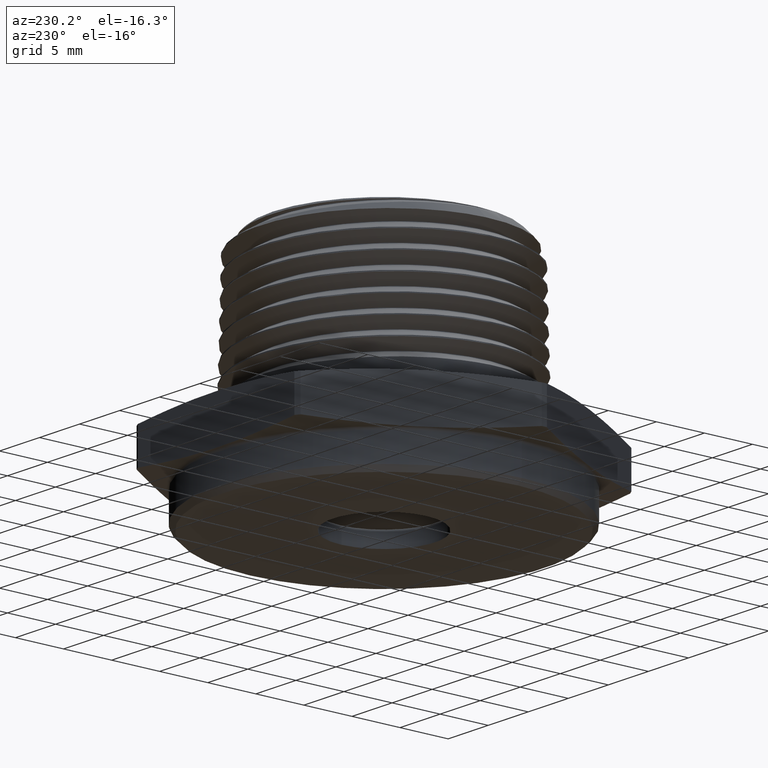
[diagram: clean part render]
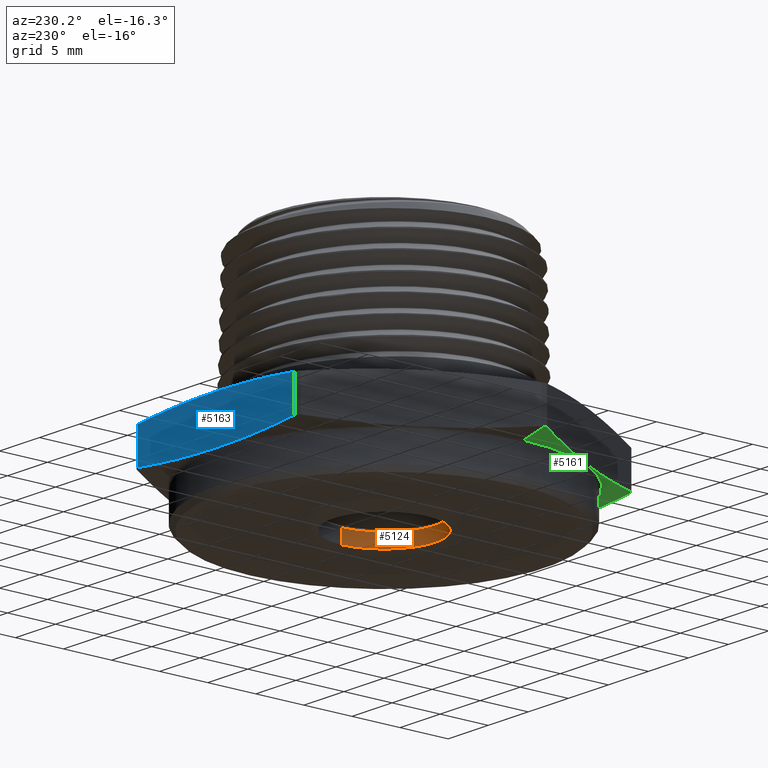
[diagram: same view with three faces highlighted in distinct colors, each labeled with its STEP entity id]
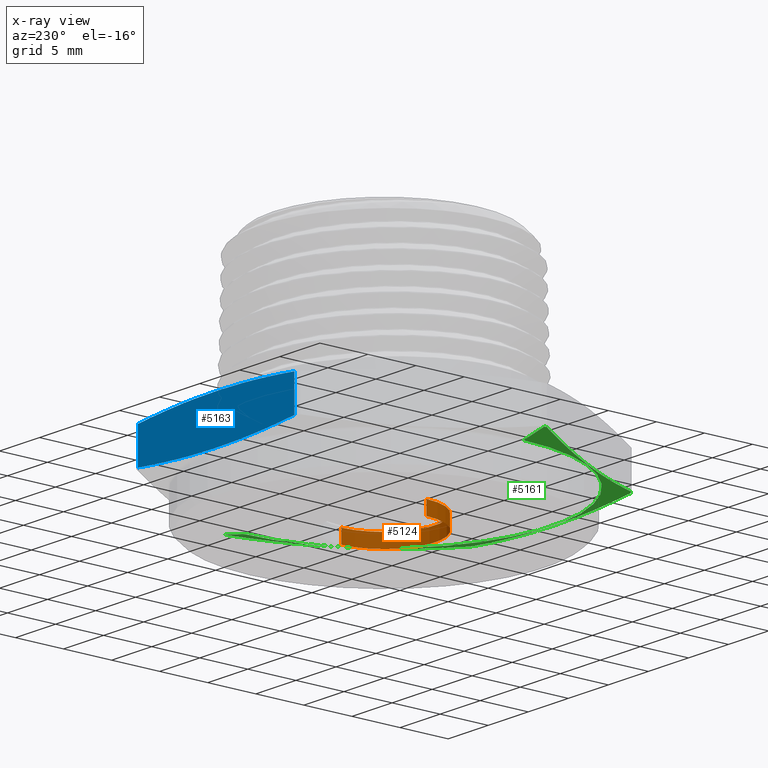
[diagram: x-ray of the same camera — body ghosted, the three highlighted faces saturated]
A machine part, auxiliary view with three faces highlighted in distinct colors.
The next image is the same camera in x-ray (body ghosted, the three faces saturated) — at least one of them is partly hidden behind the body in this view.
Their STEP definitions:

[orange] entity #5124 — the highlighted cylindrical surface (partial cylindrical patch) has radius 5.3086 mm, axis along (0, 0, 1).
#19 = EDGE_CURVE ( 'NONE', #4787, #4785, #908, .T. ) ;
#20 = EDGE_CURVE ( 'NONE', #4788, #4787, #910, .T. ) ;
#22 = EDGE_CURVE ( 'NONE', #4784, #4785, #914, .T. ) ;
#23 = EDGE_CURVE ( 'NONE', #4788, #4784, #915, .T. ) ;
#908 = LINE ( 'NONE', #4375, #913 ) ;
#910 = CIRCLE ( 'NONE', #5188, 0.2090000000000001000 ) ;
#913 = VECTOR ( 'NONE', #4406, 39.37007874015748100 ) ;
#914 = CIRCLE ( 'NONE', #5189, 0.2090000000000000700 ) ;
#915 = LINE ( 'NONE', #4394, #919 ) ;
#919 = VECTOR ( 'NONE', #4398, 39.37007874015748100 ) ;
#1148 = CARTESIAN_POINT ( 'NONE',  ( -0.2090000000000000700, 2.559511810217969300E-017, -0.08400000000000001900 ) ) ;
#1149 = CARTESIAN_POINT ( 'NONE',  ( 0.2090000000000000700, 0.0000000000000000000, -0.08400000000000001900 ) ) ;
#1151 = CARTESIAN_POINT ( 'NONE',  ( 0.2090000000000001000, 0.0000000000000000000, -0.1400000000000000100 ) ) ;
#1152 = CARTESIAN_POINT ( 'NONE',  ( -0.2090000000000001000, 2.559511810217969600E-017, -0.1400000000000000100 ) ) ;
#2866 = DIRECTION ( 'NONE',  ( 1.000000000000000000, 0.0000000000000000000, 0.0000000000000000000 ) ) ;
#2868 = CARTESIAN_POINT ( 'NONE',  ( 4.898587196589410500E-018, 0.0000000000000000000, -0.1400000000000000100 ) ) ;
#2873 = DIRECTION ( 'NONE',  ( -0.0000000000000000000, -0.0000000000000000000, 1.000000000000000000 ) ) ;
#4375 = CARTESIAN_POINT ( 'NONE',  ( 0.2090000000000000700, 0.0000000000000000000, -0.1400000000000000100 ) ) ;
#4391 = DIRECTION ( 'NONE',  ( 1.000000000000000000, 0.0000000000000000000, 0.0000000000000000000 ) ) ;
#4392 = DIRECTION ( 'NONE',  ( -0.0000000000000000000, -0.0000000000000000000, 1.000000000000000000 ) ) ;
#4393 = CARTESIAN_POINT ( 'NONE',  ( 4.898587196589410500E-018, 0.0000000000000000000, -0.08400000000000001900 ) ) ;
#4394 = CARTESIAN_POINT ( 'NONE',  ( -0.2090000000000000700, 2.559511810217969300E-017, -0.1400000000000000100 ) ) ;
#4396 = DIRECTION ( 'NONE',  ( 1.000000000000000000, 0.0000000000000000000, 0.0000000000000000000 ) ) ;
#4398 = DIRECTION ( 'NONE',  ( -0.0000000000000000000, -0.0000000000000000000, 1.000000000000000000 ) ) ;
#4406 = DIRECTION ( 'NONE',  ( -0.0000000000000000000, -0.0000000000000000000, 1.000000000000000000 ) ) ;
#4408 = CARTESIAN_POINT ( 'NONE',  ( 4.898587196589410500E-018, 0.0000000000000000000, -0.1400000000000000100 ) ) ;
#4435 = DIRECTION ( 'NONE',  ( -0.0000000000000000000, -0.0000000000000000000, 1.000000000000000000 ) ) ;
#4635 = AXIS2_PLACEMENT_3D ( 'NONE', #2868, #2873, #2866 ) ;
#4640 = FACE_OUTER_BOUND ( 'NONE', #4989, .T. ) ;
#4652 = CYLINDRICAL_SURFACE ( 'NONE', #4635, 0.2090000000000000700 ) ;
#4784 = VERTEX_POINT ( 'NONE', #1148 ) ;
#4785 = VERTEX_POINT ( 'NONE', #1149 ) ;
#4787 = VERTEX_POINT ( 'NONE', #1151 ) ;
#4788 = VERTEX_POINT ( 'NONE', #1152 ) ;
#4989 = EDGE_LOOP ( 'NONE', ( #5033, #5034, #5035, #5036 ) ) ;
#5033 = ORIENTED_EDGE ( 'NONE', *, *, #20, .F. ) ;
#5034 = ORIENTED_EDGE ( 'NONE', *, *, #23, .T. ) ;
#5035 = ORIENTED_EDGE ( 'NONE', *, *, #22, .T. ) ;
#5036 = ORIENTED_EDGE ( 'NONE', *, *, #19, .F. ) ;
#5124 = ADVANCED_FACE ( 'NONE', ( #4640 ), #4652, .F. ) ;
#5188 = AXIS2_PLACEMENT_3D ( 'NONE', #4408, #4435, #4396 ) ;
#5189 = AXIS2_PLACEMENT_3D ( 'NONE', #4393, #4392, #4391 ) ;

[blue] entity #5163 — the highlighted planar face has unit normal (0, -1, 0).
#115 = CARTESIAN_POINT ( 'NONE',  ( -0.3206987693183110400, 0.6874999999999998900, 0.1731962270674348200 ) ) ;
#119 = CARTESIAN_POINT ( 'NONE',  ( -0.3847879986326299100, 0.6874999999999998900, 0.1665429762664240300 ) ) ;
#120 = CARTESIAN_POINT ( 'NONE',  ( -0.2563731344308742800, 0.6874999999999996700, 0.1785996772782396100 ) ) ;
#121 = CARTESIAN_POINT ( 'NONE',  ( -0.1279218478780771400, 0.6875000000000000000, 0.1859489239311414600 ) ) ;
#122 = CARTESIAN_POINT ( 'NONE',  ( -0.06373527960806489600, 0.6875000000000000000, 0.1878824941306009900 ) ) ;
#123 = CARTESIAN_POINT ( 'NONE',  ( 0.06455070254764767900, 0.6874999999999998900, 0.1878663232425650500 ) ) ;
#124 = CARTESIAN_POINT ( 'NONE',  ( 0.1286501297542921900, 0.6874999999999998900, 0.1859171756923208900 ) ) ;
#125 = CARTESIAN_POINT ( 'NONE',  ( 0.2567715097588388900, 0.6875000000000000000, 0.1785668770203054400 ) ) ;
#126 = CARTESIAN_POINT ( 'NONE',  ( 0.3207939254006875700, 0.6875000000000000000, 0.1731863486949208600 ) ) ;
#127 = CARTESIAN_POINT ( 'NONE',  ( 0.3847879986326299100, 0.6874999999999998900, 0.1665429762664239500 ) ) ;
#239 = CARTESIAN_POINT ( 'NONE',  ( 0.3847879986326299100, 0.6874999999999998900, -4.829037620974710700E-017 ) ) ;
#240 = DIRECTION ( 'NONE',  ( -1.254986547952384500E-016, -0.0000000000000000000, -1.000000000000000000 ) ) ;
#253 = CARTESIAN_POINT ( 'NONE',  ( -0.3847879986326299100, 0.6874999999999998900, 4.829037620974710700E-017 ) ) ;
#254 = DIRECTION ( 'NONE',  ( 1.254986547952384500E-016, 0.0000000000000000000, 1.000000000000000000 ) ) ;
#761 = LINE ( 'NONE', #239, #763 ) ;
#763 = VECTOR ( 'NONE', #240, 39.37007874015748100 ) ;
#766 = LINE ( 'NONE', #253, #769 ) ;
#769 = VECTOR ( 'NONE', #254, 39.37007874015748100 ) ;
#1142 = CARTESIAN_POINT ( 'NONE',  ( 0.3847879986326299100, 0.6874999999999998900, 0.02345702373357588100 ) ) ;
#1172 = CARTESIAN_POINT ( 'NONE',  ( -0.3847879986326299100, 0.6874999999999998900, 0.02345702373357583200 ) ) ;
#1175 = CARTESIAN_POINT ( 'NONE',  ( -0.3847879986326299100, 0.6874999999999998900, 0.1665429762664240300 ) ) ;
#1177 = CARTESIAN_POINT ( 'NONE',  ( 0.3847879986326299100, 0.6874999999999998900, 0.1665429762664239500 ) ) ;
#3008 = AXIS2_PLACEMENT_3D ( 'NONE', #3044, #3049, #3050 ) ;
#3042 = PLANE ( 'NONE',  #3008 ) ;
#3044 = CARTESIAN_POINT ( 'NONE',  ( 0.3969283100678672700, 0.6874999999999998900, 0.1899999999999999700 ) ) ;
#3049 = DIRECTION ( 'NONE',  ( 0.0000000000000000000, -1.000000000000000000, 0.0000000000000000000 ) ) ;
#3050 = DIRECTION ( 'NONE',  ( 0.0000000000000000000, -0.0000000000000000000, -1.000000000000000000 ) ) ;
#3392 = B_SPLINE_CURVE_WITH_KNOTS ( 'NONE', 3,
 ( #4557, #4552, #4553, #4558, #4559, #4560, #4561, #4562, #4563, #4564 ),
 .UNSPECIFIED., .F., .F.,
 ( 4, 2, 2, 2, 4 ),
 ( 0.03842031353114799800, 0.04332173302324189600, 0.04822315251533578600, 0.05312457200742968400, 0.05802599149952358100 ),
 .UNSPECIFIED. ) ;
#3913 = B_SPLINE_CURVE_WITH_KNOTS ( 'NONE', 3,
 ( #119, #115, #120, #121, #122, #123, #124, #125, #126, #127 ),
 .UNSPECIFIED., .F., .F.,
 ( 4, 2, 2, 2, 4 ),
 ( 0.01704165970951810500, 0.02194787881100385500, 0.02685409791248960500, 0.03176031701397535900, 0.03666653611546111200 ),
 .UNSPECIFIED. ) ;
#4287 = EDGE_CURVE ( 'NONE', #4775, #4808, #3392, .T. ) ;
#4297 = EDGE_CURVE ( 'NONE', #4811, #4813, #3913, .T. ) ;
#4325 = EDGE_CURVE ( 'NONE', #4813, #4775, #761, .T. ) ;
#4328 = EDGE_CURVE ( 'NONE', #4808, #4811, #766, .T. ) ;
#4552 = CARTESIAN_POINT ( 'NONE',  ( 0.3207939254006876900, 0.6875000000000000000, 0.01681365130507889200 ) ) ;
#4553 = CARTESIAN_POINT ( 'NONE',  ( 0.2567715097588390000, 0.6874999999999998900, 0.01143312297969431400 ) ) ;
#4557 = CARTESIAN_POINT ( 'NONE',  ( 0.3847879986326299100, 0.6874999999999998900, 0.02345702373357588100 ) ) ;
#4558 = CARTESIAN_POINT ( 'NONE',  ( 0.1286501297542923300, 0.6875000000000000000, 0.004082824307678927100 ) ) ;
#4559 = CARTESIAN_POINT ( 'NONE',  ( 0.06455070254764767900, 0.6875000000000000000, 0.002133676757434792600 ) ) ;
#4560 = CARTESIAN_POINT ( 'NONE',  ( -0.06373527960806492400, 0.6875000000000000000, 0.002117505869398945600 ) ) ;
#4561 = CARTESIAN_POINT ( 'NONE',  ( -0.1279218478780772800, 0.6875000000000000000, 0.004051076068858394500 ) ) ;
#4562 = CARTESIAN_POINT ( 'NONE',  ( -0.2563731344308744500, 0.6874999999999998900, 0.01140032272176029800 ) ) ;
#4563 = CARTESIAN_POINT ( 'NONE',  ( -0.3206987693183109300, 0.6874999999999998900, 0.01680377293256510300 ) ) ;
#4564 = CARTESIAN_POINT ( 'NONE',  ( -0.3847879986326299100, 0.6874999999999998900, 0.02345702373357583200 ) ) ;
#4710 = FACE_OUTER_BOUND ( 'NONE', #5083, .T. ) ;
#4775 = VERTEX_POINT ( 'NONE', #1142 ) ;
#4808 = VERTEX_POINT ( 'NONE', #1172 ) ;
#4811 = VERTEX_POINT ( 'NONE', #1175 ) ;
#4813 = VERTEX_POINT ( 'NONE', #1177 ) ;
#5083 = EDGE_LOOP ( 'NONE', ( #5657, #5658, #5659, #5660 ) ) ;
#5163 = ADVANCED_FACE ( 'NONE', ( #4710 ), #3042, .F. ) ;
#5657 = ORIENTED_EDGE ( 'NONE', *, *, #4287, .T. ) ;
#5658 = ORIENTED_EDGE ( 'NONE', *, *, #4328, .T. ) ;
#5659 = ORIENTED_EDGE ( 'NONE', *, *, #4297, .T. ) ;
#5660 = ORIENTED_EDGE ( 'NONE', *, *, #4325, .T. ) ;

[green] entity #5161 — the highlighted conical surface has half-angle 78 deg.
#215 = CARTESIAN_POINT ( 'NONE',  ( 2.943824924063742600E-018, 0.0000000000000000000, 0.02345702373357578400 ) ) ;
#216 = DIRECTION ( 'NONE',  ( -1.254986547952384500E-016, -0.0000000000000000000, -1.000000000000000000 ) ) ;
#217 = DIRECTION ( 'NONE',  ( -1.000000000000000000, 0.0000000000000000000, 1.246112360589104400E-016 ) ) ;
#227 = CARTESIAN_POINT ( 'NONE',  ( 2.943824924063742600E-018, 0.0000000000000000000, 0.02345702373357578400 ) ) ;
#228 = DIRECTION ( 'NONE',  ( -1.254986547952384500E-016, -0.0000000000000000000, -1.000000000000000000 ) ) ;
#229 = DIRECTION ( 'NONE',  ( -1.000000000000000000, 0.0000000000000000000, 1.246112360589104400E-016 ) ) ;
#246 = CARTESIAN_POINT ( 'NONE',  ( 2.943824924063742600E-018, 0.0000000000000000000, 0.02345702373357578400 ) ) ;
#247 = DIRECTION ( 'NONE',  ( -1.254986547952384500E-016, -0.0000000000000000000, -1.000000000000000000 ) ) ;
#248 = DIRECTION ( 'NONE',  ( -1.000000000000000000, 0.0000000000000000000, 1.246112360589104400E-016 ) ) ;
#274 = CARTESIAN_POINT ( 'NONE',  ( 0.4350641323382057300, -0.6214468182393573200, 0.01679940204084127300 ) ) ;
#276 = CARTESIAN_POINT ( 'NONE',  ( 0.4671297988909249300, -0.5659074545914861700, 0.01141340463327810200 ) ) ;
#283 = CARTESIAN_POINT ( 'NONE',  ( -0.3206987692007930400, -0.6875000000000001100, 0.01680377292036532700 ) ) ;
#284 = CARTESIAN_POINT ( 'NONE',  ( 0.4029984657854863700, -0.6769861818872291400, 0.02345702373357588100 ) ) ;
#285 = CARTESIAN_POINT ( 'NONE',  ( -0.2563731341799860800, -0.6875000000000001100, 0.01140032270151696000 ) ) ;
#286 = CARTESIAN_POINT ( 'NONE',  ( 0.5312611319963631600, -0.4548287272957428600, 0.004066218508011505200 ) ) ;
#287 = CARTESIAN_POINT ( 'NONE',  ( 0.5953924651018014400, -0.3437499999999998300, 0.0001849127253884613400 ) ) ;
#288 = CARTESIAN_POINT ( 'NONE',  ( 0.6595237982072397200, -0.2326712727042565300, 0.004066218508011475700 ) ) ;
#289 = CARTESIAN_POINT ( 'NONE',  ( 0.7236551313126782200, -0.1215925454085133600, 0.01141340463327806200 ) ) ;
#290 = CARTESIAN_POINT ( 'NONE',  ( 0.7557207978653973600, -0.06605318176064181600, 0.01679940204084123100 ) ) ;
#291 = CARTESIAN_POINT ( 'NONE',  ( 0.7877864644181163900, -0.01051381811277011200, 0.02345702373357568700 ) ) ;
#293 = CARTESIAN_POINT ( 'NONE',  ( -0.3847879986326295200, -0.6875000000000000000, 0.02345702373357588100 ) ) ;
#294 = CARTESIAN_POINT ( 'NONE',  ( -0.1279218474649858100, -0.6875000000000001100, 0.004051076051112646000 ) ) ;
#295 = CARTESIAN_POINT ( 'NONE',  ( -0.06373527915191754000, -0.6875000000000000000, 0.002117505860394467900 ) ) ;
#296 = CARTESIAN_POINT ( 'NONE',  ( 0.06455070300540931300, -0.6874999999999998900, 0.002133676766554501400 ) ) ;
#297 = CARTESIAN_POINT ( 'NONE',  ( 0.1286501301706384800, -0.6874999999999998900, 0.004082824325596340300 ) ) ;
#298 = CARTESIAN_POINT ( 'NONE',  ( 0.2567715100175841400, -0.6874999999999998900, 0.01143312300050682400 ) ) ;
#299 = CARTESIAN_POINT ( 'NONE',  ( 0.3207939255436973400, -0.6874999999999998900, 0.01681365131992504700 ) ) ;
#300 = CARTESIAN_POINT ( 'NONE',  ( 0.3847879986326296900, -0.6874999999999998900, 0.02345702373357573900 ) ) ;
#328 = CARTESIAN_POINT ( 'NONE',  ( -0.7557207978653971400, -0.06605318176064244000, 0.01679940204084141900 ) ) ;
#329 = CARTESIAN_POINT ( 'NONE',  ( -0.7236551313126781100, -0.1215925454085140700, 0.01141340463327824600 ) ) ;
#333 = CARTESIAN_POINT ( 'NONE',  ( -0.7877864644181163900, -0.01051381811277086300, 0.02345702373357588100 ) ) ;
#334 = CARTESIAN_POINT ( 'NONE',  ( -0.6595237982072396100, -0.2326712727042570300, 0.004066218508011648300 ) ) ;
#335 = CARTESIAN_POINT ( 'NONE',  ( -0.5953924651018014400, -0.3437499999999999400, 0.0001849127253886102000 ) ) ;
#336 = CARTESIAN_POINT ( 'NONE',  ( -0.5312611319963628200, -0.4548287272957434700, 0.004066218508011630900 ) ) ;
#337 = CARTESIAN_POINT ( 'NONE',  ( -0.4671297988909244900, -0.5659074545914865000, 0.01141340463327822000 ) ) ;
#338 = CARTESIAN_POINT ( 'NONE',  ( -0.4350641323382053400, -0.6214468182393581000, 0.01679940204084139800 ) ) ;
#339 = CARTESIAN_POINT ( 'NONE',  ( -0.4029984657854861500, -0.6769861818872294800, 0.02345702373357583600 ) ) ;
#709 = CIRCLE ( 'NONE', #5218, 0.6854208830918225900 ) ;
#712 = LINE ( 'NONE', #4536, #720 ) ;
#720 = VECTOR ( 'NONE', #4532, 39.37007874015748900 ) ;
#725 = LINE ( 'NONE', #4578, #726 ) ;
#726 = VECTOR ( 'NONE', #4565, 39.37007874015748100 ) ;
#739 = CIRCLE ( 'NONE', #4592, 0.7878566201357354300 ) ;
#748 = CIRCLE ( 'NONE', #4594, 0.7878566201357354300 ) ;
#759 = CIRCLE ( 'NONE', #4597, 0.7878566201357354300 ) ;
#953 = CIRCLE ( 'NONE', #5200, 0.7878566201357354300 ) ;
#1166 = CARTESIAN_POINT ( 'NONE',  ( -0.6854208830918204800, 8.393984905471501900E-017, 0.001683635675387549700 ) ) ;
#1167 = CARTESIAN_POINT ( 'NONE',  ( 0.6854208830918204800, 0.0000000000000000000, 0.001683635675387379000 ) ) ;
#1169 = CARTESIAN_POINT ( 'NONE',  ( -0.7878566201357354300, 0.0000000000000000000, 0.02345702373357588100 ) ) ;
#1176 = CARTESIAN_POINT ( 'NONE',  ( 0.7878566201357354300, 0.0000000000000000000, 0.02345702373357568700 ) ) ;
#1186 = CARTESIAN_POINT ( 'NONE',  ( -0.7877864644181163900, -0.01051381811277086300, 0.02345702373357588100 ) ) ;
#1224 = CARTESIAN_POINT ( 'NONE',  ( -0.3847879986326295200, -0.6875000000000000000, 0.02345702373357588100 ) ) ;
#1229 = CARTESIAN_POINT ( 'NONE',  ( 0.4029984657854863700, -0.6769861818872291400, 0.02345702373357588100 ) ) ;
#1231 = CARTESIAN_POINT ( 'NONE',  ( -0.4029984657854861500, -0.6769861818872294800, 0.02345702373357583600 ) ) ;
#1232 = CARTESIAN_POINT ( 'NONE',  ( 0.3847879986326296900, -0.6874999999999998900, 0.02345702373357573900 ) ) ;
#1236 = CARTESIAN_POINT ( 'NONE',  ( 0.7877864644181163900, -0.01051381811277011200, 0.02345702373357568700 ) ) ;
#3000 = AXIS2_PLACEMENT_3D ( 'NONE', #3039, #3040, #3038 ) ;
#3038 = DIRECTION ( 'NONE',  ( 1.000000000000000000, 0.0000000000000000000, -1.246112360589104400E-016 ) ) ;
#3039 = CARTESIAN_POINT ( 'NONE',  ( 2.943824924063742600E-018, 0.0000000000000000000, 0.02345702373357578400 ) ) ;
#3040 = DIRECTION ( 'NONE',  ( 1.254986547952384500E-016, 0.0000000000000000000, 1.000000000000000000 ) ) ;
#3403 = EDGE_CURVE ( 'NONE', #4822, #4805, #953, .T. ) ;
#3428 = CARTESIAN_POINT ( 'NONE',  ( 2.943824924063742600E-018, 0.0000000000000000000, 0.02345702373357578400 ) ) ;
#3429 = DIRECTION ( 'NONE',  ( -1.254986547952384500E-016, -0.0000000000000000000, -1.000000000000000000 ) ) ;
#3430 = DIRECTION ( 'NONE',  ( -1.000000000000000000, 0.0000000000000000000, 1.246112360589104400E-016 ) ) ;
#3900 = B_SPLINE_CURVE_WITH_KNOTS ( 'NONE', 3,
 ( #333, #328, #329, #334, #335, #336, #337, #338, #339 ),
 .UNSPECIFIED., .F., .F.,
 ( 4, 2, 1, 2, 4 ),
 ( 1.926409279434427700E-006, 0.004888733991913834200, 0.009775541574548234100, 0.01466234915718263500, 0.01954915673981703600 ),
 .UNSPECIFIED. ) ;
#3905 = B_SPLINE_CURVE_WITH_KNOTS ( 'NONE', 3,
 ( #293, #283, #285, #294, #295, #296, #297, #298, #299, #300 ),
 .UNSPECIFIED., .F., .F.,
 ( 4, 2, 2, 2, 4 ),
 ( 0.01704166410926147300, 0.02194788321822907900, 0.02685410232719668400, 0.03176032143616429300, 0.03666654054513189500 ),
 .UNSPECIFIED. ) ;
#3908 = B_SPLINE_CURVE_WITH_KNOTS ( 'NONE', 3,
 ( #284, #274, #276, #286, #287, #288, #289, #290, #291 ),
 .UNSPECIFIED., .F., .F.,
 ( 4, 2, 1, 2, 4 ),
 ( 1.926409279453599900E-006, 0.004888733991913855900, 0.009775541574548258400, 0.01466234915718266100, 0.01954915673981706300 ),
 .UNSPECIFIED. ) ;
#4277 = EDGE_CURVE ( 'NONE', #4802, #4803, #709, .T. ) ;
#4283 = EDGE_CURVE ( 'NONE', #4802, #4805, #712, .T. ) ;
#4291 = EDGE_CURVE ( 'NONE', #4803, #4812, #725, .T. ) ;
#4312 = EDGE_CURVE ( 'NONE', #4860, #4867, #739, .T. ) ;
#4317 = EDGE_CURVE ( 'NONE', #4865, #4868, #748, .T. ) ;
#4324 = EDGE_CURVE ( 'NONE', #4812, #4872, #759, .T. ) ;
#4332 = EDGE_CURVE ( 'NONE', #4865, #4872, #3908, .T. ) ;
#4333 = EDGE_CURVE ( 'NONE', #4860, #4868, #3905, .T. ) ;
#4350 = EDGE_CURVE ( 'NONE', #4822, #4867, #3900, .T. ) ;
#4524 = CARTESIAN_POINT ( 'NONE',  ( 5.234056155062456600E-018, 0.0000000000000000000, 0.001683635675387464200 ) ) ;
#4525 = DIRECTION ( 'NONE',  ( 1.254986547952384500E-016, 0.0000000000000000000, 1.000000000000000000 ) ) ;
#4526 = DIRECTION ( 'NONE',  ( 1.000000000000000000, 0.0000000000000000000, -1.253300212794401400E-016 ) ) ;
#4532 = DIRECTION ( 'NONE',  ( -0.9781476007338069100, 1.197885328332319900E-016, 0.2079116908177526000 ) ) ;
#4536 = CARTESIAN_POINT ( 'NONE',  ( -0.7878566201357354300, 9.648460880362804700E-017, 0.02345702373357588100 ) ) ;
#4565 = DIRECTION ( 'NONE',  ( 0.9781476007338071300, 0.0000000000000000000, 0.2079116908177524000 ) ) ;
#4578 = CARTESIAN_POINT ( 'NONE',  ( 0.7878566201357354300, 0.0000000000000000000, 0.02345702373357568700 ) ) ;
#4592 = AXIS2_PLACEMENT_3D ( 'NONE', #215, #216, #217 ) ;
#4594 = AXIS2_PLACEMENT_3D ( 'NONE', #227, #228, #229 ) ;
#4597 = AXIS2_PLACEMENT_3D ( 'NONE', #246, #247, #248 ) ;
#4721 = FACE_OUTER_BOUND ( 'NONE', #5082, .T. ) ;
#4728 = CONICAL_SURFACE ( 'NONE', #3000, 0.7878566201357354300, 1.361356816555584000 ) ;
#4802 = VERTEX_POINT ( 'NONE', #1166 ) ;
#4803 = VERTEX_POINT ( 'NONE', #1167 ) ;
#4805 = VERTEX_POINT ( 'NONE', #1169 ) ;
#4812 = VERTEX_POINT ( 'NONE', #1176 ) ;
#4822 = VERTEX_POINT ( 'NONE', #1186 ) ;
#4860 = VERTEX_POINT ( 'NONE', #1224 ) ;
#4865 = VERTEX_POINT ( 'NONE', #1229 ) ;
#4867 = VERTEX_POINT ( 'NONE', #1231 ) ;
#4868 = VERTEX_POINT ( 'NONE', #1232 ) ;
#4872 = VERTEX_POINT ( 'NONE', #1236 ) ;
#5082 = EDGE_LOOP ( 'NONE', ( #5671, #5672, #5673, #5674, #5675, #5676, #5677, #5678, #5679, #5680 ) ) ;
#5161 = ADVANCED_FACE ( 'NONE', ( #4721 ), #4728, .T. ) ;
#5200 = AXIS2_PLACEMENT_3D ( 'NONE', #3428, #3429, #3430 ) ;
#5218 = AXIS2_PLACEMENT_3D ( 'NONE', #4524, #4525, #4526 ) ;
#5671 = ORIENTED_EDGE ( 'NONE', *, *, #4283, .F. ) ;
#5672 = ORIENTED_EDGE ( 'NONE', *, *, #4277, .T. ) ;
#5673 = ORIENTED_EDGE ( 'NONE', *, *, #4291, .T. ) ;
#5674 = ORIENTED_EDGE ( 'NONE', *, *, #4324, .T. ) ;
#5675 = ORIENTED_EDGE ( 'NONE', *, *, #4332, .F. ) ;
#5676 = ORIENTED_EDGE ( 'NONE', *, *, #4317, .T. ) ;
#5677 = ORIENTED_EDGE ( 'NONE', *, *, #4333, .F. ) ;
#5678 = ORIENTED_EDGE ( 'NONE', *, *, #4312, .T. ) ;
#5679 = ORIENTED_EDGE ( 'NONE', *, *, #4350, .F. ) ;
#5680 = ORIENTED_EDGE ( 'NONE', *, *, #3403, .T. ) ;